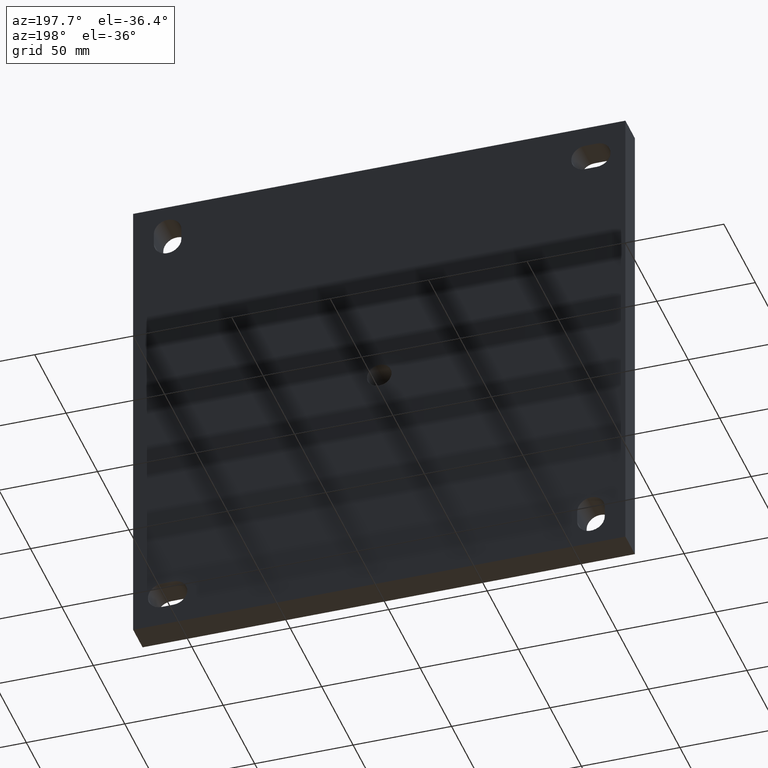
[diagram: clean part render]
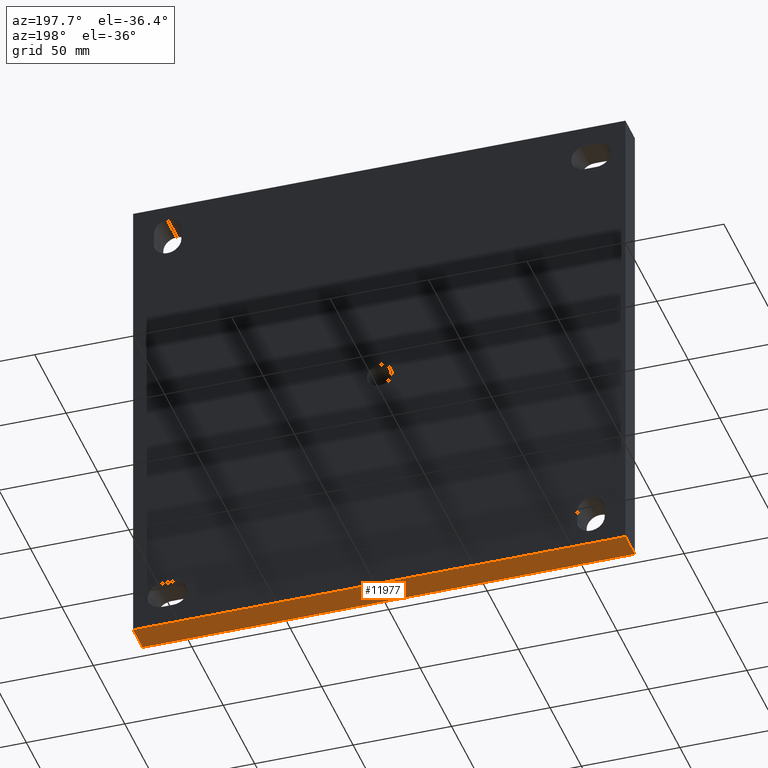
[diagram: same view with one face highlighted and labeled with its STEP entity id]
A machine part, auxiliary view. The second image highlights one B-rep face of the part: STEP entity #11977.
In plain terms, the highlighted planar face has unit normal (0, 0, 1).
Its self-contained STEP definition (entity closure, byte-faithful):
#134 = CARTESIAN_POINT ( 'NONE',  ( 124.9999999999999858, 15.00000000000000000, -124.9999999999999858 ) ) ;
#614 = ORIENTED_EDGE ( 'NONE', *, *, #4876, .T. ) ;
#1181 = VERTEX_POINT ( 'NONE', #8275 ) ;
#1365 = VERTEX_POINT ( 'NONE', #1394 ) ;
#1381 = DIRECTION ( 'NONE',  ( -1.000000000000000000, -0.000000000000000000, -0.000000000000000000 ) ) ;
#1394 = CARTESIAN_POINT ( 'NONE',  ( -124.9999999999999858, 15.00000000000000000, -124.9999999999999858 ) ) ;
#1633 = LINE ( 'NONE', #5581, #12918 ) ;
#3024 = CARTESIAN_POINT ( 'NONE',  ( -124.9999999999999858, 0.000000000000000000, -124.9999999999999858 ) ) ;
#3469 = VERTEX_POINT ( 'NONE', #134 ) ;
#4538 = ORIENTED_EDGE ( 'NONE', *, *, #13244, .F. ) ;
#4722 = LINE ( 'NONE', #3024, #12171 ) ;
#4740 = AXIS2_PLACEMENT_3D ( 'NONE', #11151, #12224, #10078 ) ;
#4876 = EDGE_CURVE ( 'NONE', #1181, #9609, #4722, .T. ) ;
#5345 = CARTESIAN_POINT ( 'NONE',  ( -124.9999999999999858, 15.00000000000000000, -124.9999999999999858 ) ) ;
#5581 = CARTESIAN_POINT ( 'NONE',  ( 124.9999999999999858, 15.00000000000000000, -124.9999999999999858 ) ) ;
#6079 = ORIENTED_EDGE ( 'NONE', *, *, #7898, .T. ) ;
#7313 = DIRECTION ( 'NONE',  ( -1.000000000000000000, -0.000000000000000000, -0.000000000000000000 ) ) ;
#7456 = ORIENTED_EDGE ( 'NONE', *, *, #9795, .F. ) ;
#7686 = VECTOR ( 'NONE', #1381, 1000.000000000000000 ) ;
#7898 = EDGE_CURVE ( 'NONE', #3469, #1181, #1633, .T. ) ;
#8275 = CARTESIAN_POINT ( 'NONE',  ( 124.9999999999999858, 0.000000000000000000, -124.9999999999999858 ) ) ;
#8802 = DIRECTION ( 'NONE',  ( -0.000000000000000000, -1.000000000000000000, -0.000000000000000000 ) ) ;
#9129 = PLANE ( 'NONE',  #4740 ) ;
#9545 = LINE ( 'NONE', #11762, #13392 ) ;
#9609 = VERTEX_POINT ( 'NONE', #10820 ) ;
#9795 = EDGE_CURVE ( 'NONE', #1365, #9609, #9545, .T. ) ;
#10078 = DIRECTION ( 'NONE',  ( 1.000000000000000000, 0.000000000000000000, -0.000000000000000000 ) ) ;
#10481 = LINE ( 'NONE', #5345, #7686 ) ;
#10820 = CARTESIAN_POINT ( 'NONE',  ( -124.9999999999999858, 0.000000000000000000, -124.9999999999999858 ) ) ;
#11151 = CARTESIAN_POINT ( 'NONE',  ( -124.9999999999999858, 15.00000000000000000, -124.9999999999999858 ) ) ;
#11496 = FACE_OUTER_BOUND ( 'NONE', #12118, .T. ) ;
#11762 = CARTESIAN_POINT ( 'NONE',  ( -124.9999999999999858, 15.00000000000000000, -124.9999999999999858 ) ) ;
#11977 = ADVANCED_FACE ( 'NONE', ( #11496 ), #9129, .F. ) ;
#12118 = EDGE_LOOP ( 'NONE', ( #614, #7456, #4538, #6079 ) ) ;
#12171 = VECTOR ( 'NONE', #7313, 1000.000000000000000 ) ;
#12224 = DIRECTION ( 'NONE',  ( 0.000000000000000000, 0.000000000000000000, 1.000000000000000000 ) ) ;
#12801 = DIRECTION ( 'NONE',  ( -0.000000000000000000, -1.000000000000000000, -0.000000000000000000 ) ) ;
#12918 = VECTOR ( 'NONE', #8802, 1000.000000000000000 ) ;
#13244 = EDGE_CURVE ( 'NONE', #3469, #1365, #10481, .T. ) ;
#13392 = VECTOR ( 'NONE', #12801, 1000.000000000000000 ) ;